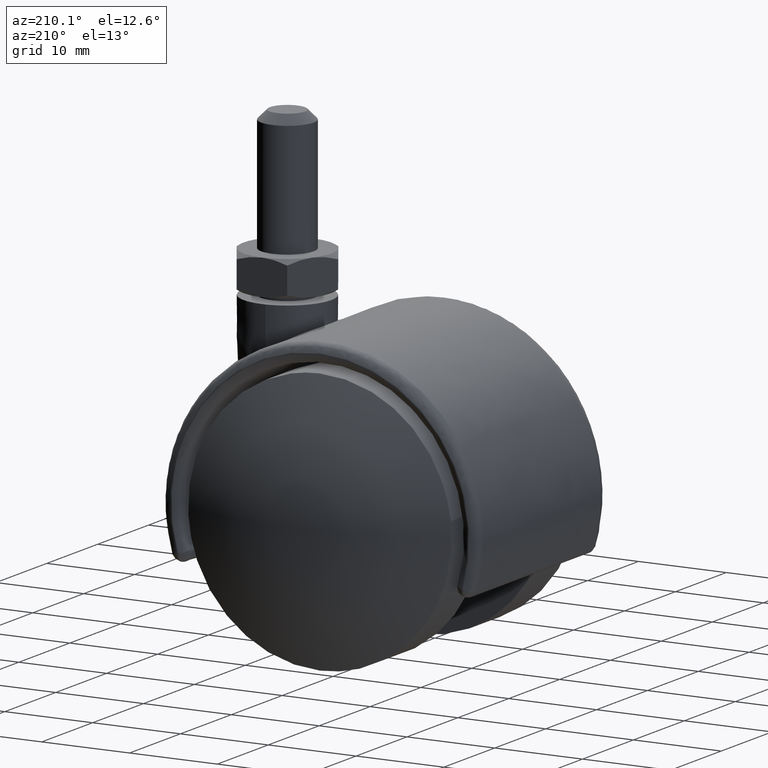
[diagram: clean part render]
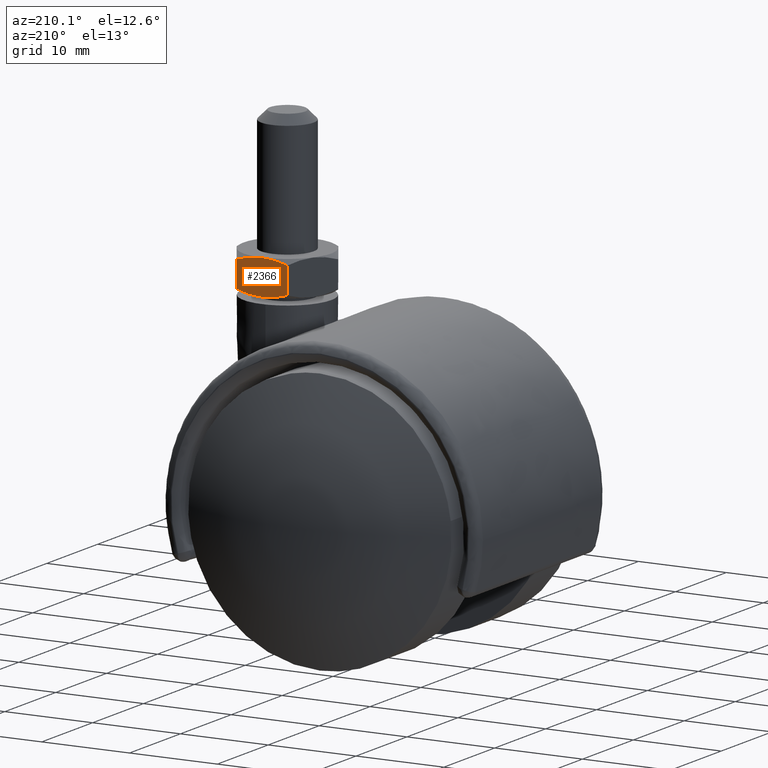
[diagram: same view with one face highlighted and labeled with its STEP entity id]
A machine part, auxiliary view. The second image highlights one B-rep face of the part: STEP entity #2366.
In plain terms, the highlighted face is a freeform B-spline surface patch.
Its self-contained STEP definition (entity closure, byte-faithful):
#1504=CARTESIAN_POINT('',(10.999998999999800,5.000000000000201,23.999998000000001));
#1505=VERTEX_POINT('',#1504);
#1597=CARTESIAN_POINT('',(13.886749999999999,5.000000000000201,23.509253068671100));
#1598=VERTEX_POINT('',#1597);
#1612=CARTESIAN_POINT('',(13.886749999999999,5.000000000000201,23.509253068671100));
#1613=CARTESIAN_POINT('',(13.421581403062090,5.000000000000201,23.656815038450429));
#1614=CARTESIAN_POINT('',(12.949513658213849,5.000000000000202,23.780097790050931));
#1615=CARTESIAN_POINT('',(12.346256064255590,5.000000000000201,23.887843616922179));
#1616=CARTESIAN_POINT('',(12.224942440533390,5.000000000000202,23.907062727878799));
#1617=CARTESIAN_POINT('',(11.980870817590301,5.000000000000203,23.940417958628490));
#1618=CARTESIAN_POINT('',(11.857843294831520,5.000000000000202,23.954576659818720));
#1619=CARTESIAN_POINT('',(11.488840231660390,5.000000000000201,23.988610677137380));
#1620=CARTESIAN_POINT('',(11.243944529028640,5.000000000000201,23.999997756110812));
#1621=CARTESIAN_POINT('',(10.999998999999800,5.000000000000201,23.999998000000001));
#1622=B_SPLINE_CURVE_WITH_KNOTS('',3,(#1612,#1613,#1614,#1615,#1616,#1617,#1618,#1619,#1620,#1621),.UNSPECIFIED.,.F.,.U.,(4,2,2,2,4),(0.500250407006186,0.750250407006186,0.812750407006186,0.875250407006186,1.0),.UNSPECIFIED.);
#1623=EDGE_CURVE('',#1598,#1505,#1622,.T.);
#1783=CARTESIAN_POINT('',(8.113247000000001,5.000000000000201,23.509252751448649));
#1784=VERTEX_POINT('',#1783);
#1785=CARTESIAN_POINT('',(10.999998999999800,5.000000000000201,23.999998000000001));
#1786=CARTESIAN_POINT('',(10.999509333968520,5.000000000000201,23.999997999754360));
#1787=CARTESIAN_POINT('',(10.999019671756169,5.000000000000201,23.999997954363039));
#1788=CARTESIAN_POINT('',(10.754098641012011,5.000000000000200,23.999952301503232));
#1789=CARTESIAN_POINT('',(10.510620819632020,5.000000000000200,23.988479438591700));
#1790=CARTESIAN_POINT('',(10.025470783060801,5.000000000000201,23.943895429744099));
#1791=CARTESIAN_POINT('',(9.783797171518598,5.000000000000201,23.910801017599621));
#1792=CARTESIAN_POINT('',(9.302062143822262,5.000000000000201,23.825291734444701));
#1793=CARTESIAN_POINT('',(9.061999175132728,5.000000000000202,23.772895468931321));
#1794=CARTESIAN_POINT('',(8.583248340273945,5.000000000000201,23.651623786632690));
#1795=CARTESIAN_POINT('',(8.346957337720401,5.000000000000202,23.583390960645829));
#1796=CARTESIAN_POINT('',(8.113246999999996,5.000000000000201,23.509252751448660));
#1797=B_SPLINE_CURVE_WITH_KNOTS('',3,(#1785,#1786,#1787,#1788,#1789,#1790,#1791,#1792,#1793,#1794,#1795,#1796),.UNSPECIFIED.,.F.,.U.,(4,2,2,2,2,4),(0.0,0.000250406882692,0.125250406882692,0.250250406882692,0.375250406882692,0.500250406882692),.UNSPECIFIED.);
#1798=EDGE_CURVE('',#1505,#1784,#1797,.T.);
#1868=CARTESIAN_POINT('',(10.999998999999800,5.000000000000201,19.999998000000001));
#1869=VERTEX_POINT('',#1868);
#1994=CARTESIAN_POINT('',(13.886749999999999,5.000000000000201,20.490742931328899));
#1995=VERTEX_POINT('',#1994);
#1996=CARTESIAN_POINT('',(13.886749999999999,5.000000000000201,20.490742931328899));
#1997=CARTESIAN_POINT('',(13.421581403062090,5.000000000000201,20.343180961549582));
#1998=CARTESIAN_POINT('',(12.949513658213849,5.000000000000201,20.219898209949069));
#1999=CARTESIAN_POINT('',(12.346256064255590,5.000000000000200,20.112152383077831));
#2000=CARTESIAN_POINT('',(12.224942440533390,5.000000000000200,20.092933272121201));
#2001=CARTESIAN_POINT('',(11.980870817590301,5.000000000000202,20.059578041371520));
#2002=CARTESIAN_POINT('',(11.857843294831520,5.000000000000201,20.045419340181279));
#2003=CARTESIAN_POINT('',(11.488840231660390,5.000000000000202,20.011385322862619));
#2004=CARTESIAN_POINT('',(11.243944529028640,5.000000000000202,19.999998243889198));
#2005=CARTESIAN_POINT('',(10.999998999999800,5.000000000000201,19.999998000000001));
#2006=B_SPLINE_CURVE_WITH_KNOTS('',3,(#1996,#1997,#1998,#1999,#2000,#2001,#2002,#2003,#2004,#2005),.UNSPECIFIED.,.F.,.U.,(4,2,2,2,4),(0.500250407006186,0.750250407006186,0.812750407006186,0.875250407006186,1.0),.UNSPECIFIED.);
#2007=EDGE_CURVE('',#1995,#1869,#2006,.T.);
#2180=CARTESIAN_POINT('',(8.113247000000001,5.000000000000201,20.490743248551350));
#2181=VERTEX_POINT('',#2180);
#2195=CARTESIAN_POINT('',(10.999998999999800,5.000000000000201,19.999998000000001));
#2196=CARTESIAN_POINT('',(10.999509333968520,5.000000000000201,19.999998000245640));
#2197=CARTESIAN_POINT('',(10.999019671756169,5.000000000000201,19.999998045636950));
#2198=CARTESIAN_POINT('',(10.754098641012011,5.000000000000201,20.000043698496761));
#2199=CARTESIAN_POINT('',(10.510620819632020,5.000000000000202,20.011516561408300));
#2200=CARTESIAN_POINT('',(10.025470783060809,5.000000000000201,20.056100570255900));
#2201=CARTESIAN_POINT('',(9.783797171518600,5.000000000000201,20.089194982400389));
#2202=CARTESIAN_POINT('',(9.302062143822267,5.000000000000201,20.174704265555299));
#2203=CARTESIAN_POINT('',(9.061999175132730,5.000000000000202,20.227100531068690));
#2204=CARTESIAN_POINT('',(8.583248340273951,5.000000000000201,20.348372213367309));
#2205=CARTESIAN_POINT('',(8.346957337720394,5.000000000000202,20.416605039354181));
#2206=CARTESIAN_POINT('',(8.113246999999992,5.000000000000201,20.490743248551340));
#2207=B_SPLINE_CURVE_WITH_KNOTS('',3,(#2195,#2196,#2197,#2198,#2199,#2200,#2201,#2202,#2203,#2204,#2205,#2206),.UNSPECIFIED.,.F.,.U.,(4,2,2,2,2,4),(0.0,0.000250406882692,0.125250406882692,0.250250406882692,0.375250406882692,0.500250406882692),.UNSPECIFIED.);
#2208=EDGE_CURVE('',#1869,#2181,#2207,.T.);
#2265=CARTESIAN_POINT('',(8.113247000000001,5.000000000000201,20.490743248551350));
#2266=CARTESIAN_POINT('',(8.113247000000001,5.000000000000201,23.509252751448649));
#2267=QUASI_UNIFORM_CURVE('',1,(#2265,#2266),.UNSPECIFIED.,.F.,.U.);
#2268=EDGE_CURVE('',#2181,#1784,#2267,.T.);
#2344=CARTESIAN_POINT('',(13.886749999999999,5.000000000000201,20.490742931328899));
#2345=CARTESIAN_POINT('',(13.886749999999999,5.000000000000201,23.509253068671100));
#2346=QUASI_UNIFORM_CURVE('',1,(#2344,#2345),.UNSPECIFIED.,.F.,.U.);
#2347=EDGE_CURVE('',#1995,#1598,#2346,.T.);
#2353=CARTESIAN_POINT('',(7.824860427945141,5.000000000000201,24.199798090603831));
#2354=CARTESIAN_POINT('',(7.824860427945141,5.000000000000201,19.800198195498471));
#2355=CARTESIAN_POINT('',(14.175136623674000,5.000000000000201,24.199798090603831));
#2356=CARTESIAN_POINT('',(14.175136623674000,5.000000000000201,19.800198195498471));
#2357=B_SPLINE_SURFACE_WITH_KNOTS('',1,1,((#2353,#2355),(#2354,#2356)),.UNSPECIFIED.,.F.,.F.,.U.,(2,2),(2,2),(0.0,4.399599895105361),(0.0,6.350276195728863),.UNSPECIFIED.);
#2358=ORIENTED_EDGE('',*,*,#1623,.F.);
#2359=ORIENTED_EDGE('',*,*,#2347,.F.);
#2360=ORIENTED_EDGE('',*,*,#2007,.T.);
#2361=ORIENTED_EDGE('',*,*,#2208,.T.);
#2362=ORIENTED_EDGE('',*,*,#2268,.T.);
#2363=ORIENTED_EDGE('',*,*,#1798,.F.);
#2364=EDGE_LOOP('',(#2358,#2359,#2360,#2361,#2362,#2363));
#2365=FACE_OUTER_BOUND('',#2364,.T.);
#2366=ADVANCED_FACE('',(#2365),#2357,.F.);